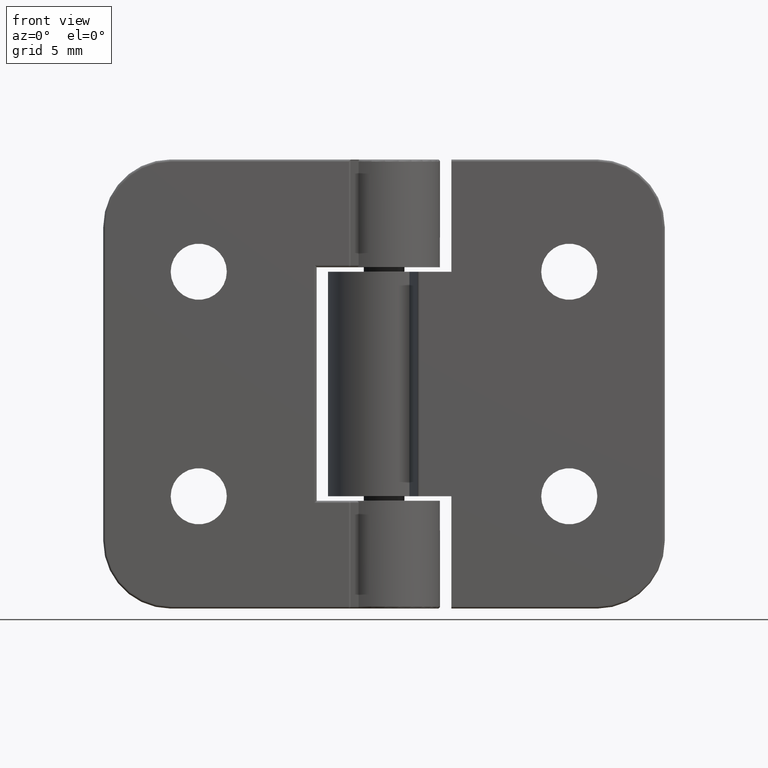
[diagram: clean part render]
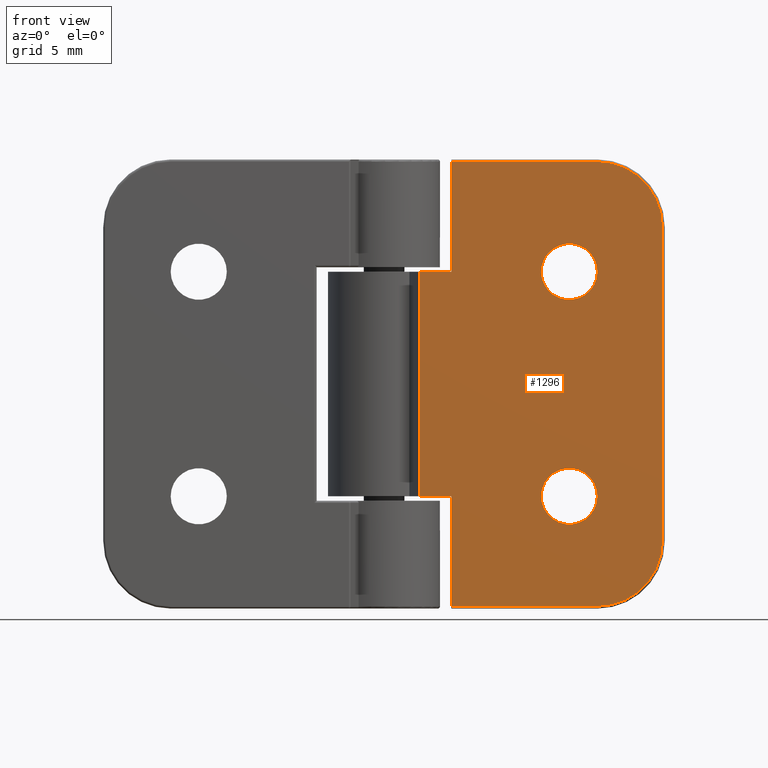
[diagram: same view with one face highlighted and labeled with its STEP entity id]
A machine part, front view. The second image highlights one B-rep face of the part: STEP entity #1296.
In plain terms, the highlighted planar face has unit normal (-0, -1, 0).
Its self-contained STEP definition (entity closure, byte-faithful):
#72=FACE_BOUND('',#278,.T.);
#73=FACE_BOUND('',#279,.T.);
#97=PLANE('',#1469);
#178=FACE_OUTER_BOUND('',#277,.T.);
#277=EDGE_LOOP('',(#1146,#1147,#1148,#1149,#1150,#1151,#1152,#1153,#1154,
#1155));
#278=EDGE_LOOP('',(#1156));
#279=EDGE_LOOP('',(#1157));
#347=LINE('',#2238,#423);
#350=LINE('',#2252,#426);
#353=LINE('',#2263,#429);
#357=LINE('',#2275,#433);
#361=LINE('',#2289,#437);
#365=LINE('',#2299,#441);
#368=LINE('',#2306,#444);
#371=LINE('',#2321,#447);
#423=VECTOR('',#1752,1.425);
#426=VECTOR('',#1765,4.9);
#429=VECTOR('',#1774,4.9);
#433=VECTOR('',#1784,1.425);
#437=VECTOR('',#1800,10.);
#441=VECTOR('',#1812,6.5);
#444=VECTOR('',#1819,6.5);
#447=VECTOR('',#1836,14.);
#523=CIRCLE('',#1447,2.9);
#526=CIRCLE('',#1452,2.9);
#537=CIRCLE('',#1470,1.25);
#538=CIRCLE('',#1471,1.25);
#611=VERTEX_POINT('',#2236);
#612=VERTEX_POINT('',#2237);
#618=VERTEX_POINT('',#2251);
#622=VERTEX_POINT('',#2261);
#623=VERTEX_POINT('',#2262);
#628=VERTEX_POINT('',#2274);
#634=VERTEX_POINT('',#2297);
#636=VERTEX_POINT('',#2305);
#638=VERTEX_POINT('',#2311);
#640=VERTEX_POINT('',#2317);
#651=VERTEX_POINT('',#2356);
#652=VERTEX_POINT('',#2358);
#765=EDGE_CURVE('',#611,#612,#347,.T.);
#772=EDGE_CURVE('',#618,#611,#350,.T.);
#777=EDGE_CURVE('',#622,#623,#353,.T.);
#783=EDGE_CURVE('',#628,#622,#357,.T.);
#791=EDGE_CURVE('',#628,#612,#361,.T.);
#796=EDGE_CURVE('',#634,#623,#365,.T.);
#799=EDGE_CURVE('',#618,#636,#368,.T.);
#804=EDGE_CURVE('',#636,#638,#523,.T.);
#807=EDGE_CURVE('',#638,#640,#371,.T.);
#809=EDGE_CURVE('',#640,#634,#526,.T.);
#825=EDGE_CURVE('',#651,#651,#537,.T.);
#826=EDGE_CURVE('',#652,#652,#538,.T.);
#1146=ORIENTED_EDGE('',*,*,#765,.T.);
#1147=ORIENTED_EDGE('',*,*,#791,.F.);
#1148=ORIENTED_EDGE('',*,*,#783,.T.);
#1149=ORIENTED_EDGE('',*,*,#777,.T.);
#1150=ORIENTED_EDGE('',*,*,#796,.F.);
#1151=ORIENTED_EDGE('',*,*,#809,.F.);
#1152=ORIENTED_EDGE('',*,*,#807,.F.);
#1153=ORIENTED_EDGE('',*,*,#804,.F.);
#1154=ORIENTED_EDGE('',*,*,#799,.F.);
#1155=ORIENTED_EDGE('',*,*,#772,.T.);
#1156=ORIENTED_EDGE('',*,*,#825,.T.);
#1157=ORIENTED_EDGE('',*,*,#826,.T.);
#1296=ADVANCED_FACE('',(#178,#72,#73),#97,.T.);
#1447=AXIS2_PLACEMENT_3D('',#2315,#1829,#1830);
#1452=AXIS2_PLACEMENT_3D('',#2324,#1841,#1842);
#1469=AXIS2_PLACEMENT_3D('',#2355,#1880,#1881);
#1470=AXIS2_PLACEMENT_3D('',#2357,#1882,#1883);
#1471=AXIS2_PLACEMENT_3D('',#2359,#1884,#1885);
#1752=DIRECTION('',(1.,5.04646829375071E-17,0.));
#1765=DIRECTION('',(0.,0.,1.));
#1774=DIRECTION('',(0.,0.,1.));
#1784=DIRECTION('',(-1.,-5.04646829375071E-17,0.));
#1800=DIRECTION('',(0.,0.,-1.));
#1812=DIRECTION('',(1.,5.04646829375071E-17,0.));
#1819=DIRECTION('',(-1.,-5.04646829375071E-17,0.));
#1829=DIRECTION('center_axis',(-5.04646829375071E-17,1.,0.));
#1830=DIRECTION('ref_axis',(-0.707106781186548,-3.56839195155403E-17,-0.707106781186548));
#1836=DIRECTION('',(0.,0.,1.));
#1841=DIRECTION('center_axis',(-5.04646829375071E-17,1.,0.));
#1842=DIRECTION('ref_axis',(-0.707106781186548,-3.56839195155403E-17,0.707106781186548));
#1880=DIRECTION('center_axis',(5.04646829375071E-17,-1.,0.));
#1881=DIRECTION('ref_axis',(1.,5.04646829375071E-17,0.));
#1882=DIRECTION('center_axis',(-5.04646829375071E-17,1.,0.));
#1883=DIRECTION('ref_axis',(1.,0.,0.));
#1884=DIRECTION('center_axis',(-5.04646829375071E-17,1.,0.));
#1885=DIRECTION('ref_axis',(1.,0.,0.));
#2236=CARTESIAN_POINT('',(-3.,0.,-5.));
#2237=CARTESIAN_POINT('',(-1.575,0.,-5.));
#2238=CARTESIAN_POINT('',(-7.75,-2.77555756156289E-16,-5.));
#2251=CARTESIAN_POINT('',(-3.,-7.88510681087181E-17,-9.9));
#2252=CARTESIAN_POINT('',(-3.,-1.38777878078145E-16,-5.47981732537982));
#2261=CARTESIAN_POINT('',(-3.,0.,5.));
#2262=CARTESIAN_POINT('',(-3.,-7.8851068108718E-17,9.9));
#2263=CARTESIAN_POINT('',(-3.,-1.38777878078145E-16,2.5));
#2274=CARTESIAN_POINT('',(-1.575,0.,5.));
#2275=CARTESIAN_POINT('',(-3.69807878411039,-1.38777878078145E-16,5.));
#2289=CARTESIAN_POINT('',(-1.575,0.,0.));
#2297=CARTESIAN_POINT('',(-9.5,-3.98986399474666E-16,9.9));
#2299=CARTESIAN_POINT('',(-6.24999997981037,-2.42861286636753E-16,9.9));
#2305=CARTESIAN_POINT('',(-9.5,-4.06871507202514E-16,-9.9));
#2306=CARTESIAN_POINT('',(-6.24999997981037,-2.42861286636753E-16,-9.9));
#2311=CARTESIAN_POINT('',(-12.4,-5.45333979993436E-16,-7.));
#2315=CARTESIAN_POINT('Origin',(-9.5,-3.98986399474666E-16,-7.));
#2317=CARTESIAN_POINT('',(-12.4,-5.55111512312578E-16,7.));
#2321=CARTESIAN_POINT('',(-12.4,-5.55111512312578E-16,0.));
#2324=CARTESIAN_POINT('Origin',(-9.5,-3.98986399474666E-16,7.));
#2355=CARTESIAN_POINT('Origin',(-12.5,-5.55111512312578E-16,0.));
#2356=CARTESIAN_POINT('',(-9.5,-5.55111512312578E-16,5.));
#2357=CARTESIAN_POINT('Origin',(-8.25,-5.55111512312578E-16,5.));
#2358=CARTESIAN_POINT('',(-9.5,-5.55111512312578E-16,-5.));
#2359=CARTESIAN_POINT('Origin',(-8.25,-5.55111512312578E-16,-5.));